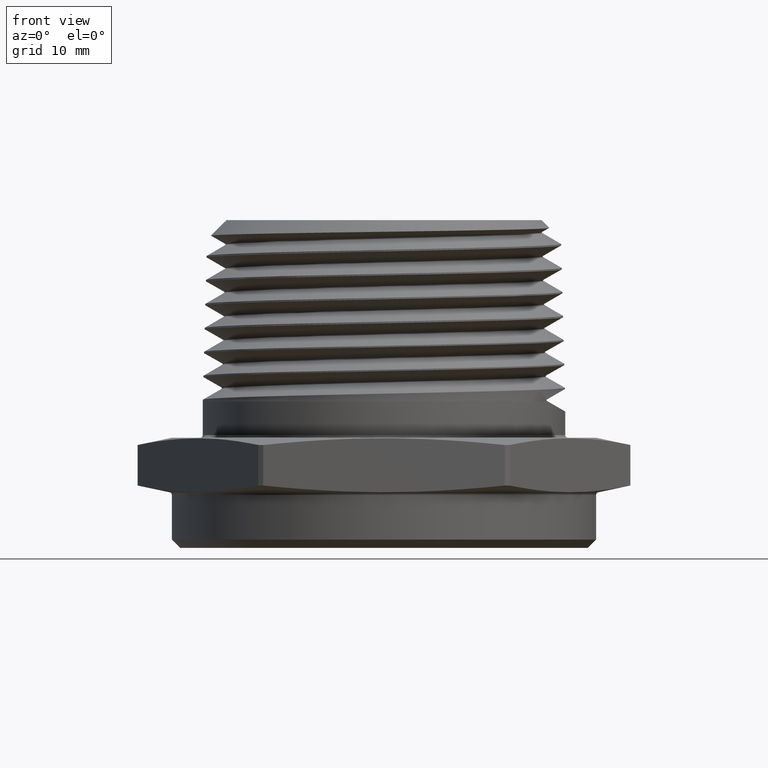
[diagram: clean part render]
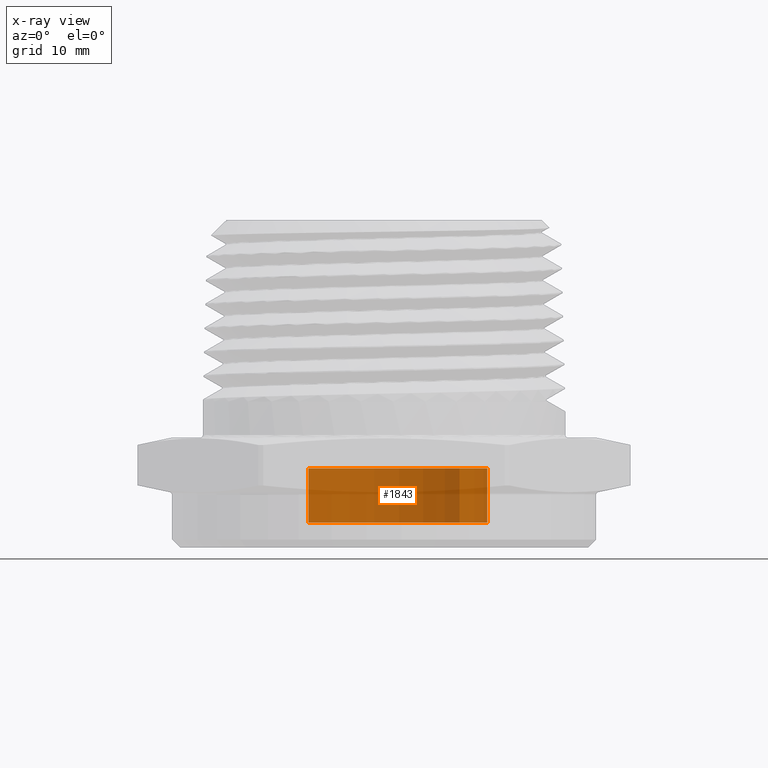
[diagram: x-ray — body ghosted, one internal face saturated and labeled with its STEP entity id]
A machine part, front view, then the same camera in x-ray: the body is ghosted and one INTERNAL B-rep face — a face not visible from any outside direction — is saturated and labeled: STEP entity #1843.
In plain terms, the highlighted cylindrical surface (partial cylindrical patch) has radius 9.5249 mm, axis along (0, 0, -1).
Its self-contained STEP definition (entity closure, byte-faithful):
#59 = AXIS2_PLACEMENT_3D ( 'NONE', #2581, #2582, #2583 ) ;
#1843 = ADVANCED_FACE ( 'NONE', ( #5679 ), #5683, .T. ) ;
#2581 = CARTESIAN_POINT ( 'NONE',  ( 0.09329948630094443700, -0.2820031074539262600, 0.2162204724409449700 ) ) ;
#2582 = DIRECTION ( 'NONE',  ( -0.0000000000000000000, -0.0000000000000000000, -1.000000000000000000 ) ) ;
#2583 = DIRECTION ( 'NONE',  ( 1.000000000000000000, -9.106293384606316300E-017, 0.0000000000000000000 ) ) ;
#2599 = CARTESIAN_POINT ( 'NONE',  ( 0.4682939926115881100, -0.2820031074539262600, 0.2162204724409449700 ) ) ;
#2610 = CARTESIAN_POINT ( 'NONE',  ( -0.2816950200096992000, -0.2820031074539262600, 0.2162204724409449700 ) ) ;
#2612 = CARTESIAN_POINT ( 'NONE',  ( -0.2816950200096992000, -0.2820031074539262600, 0.02000000000000005900 ) ) ;
#2615 = CARTESIAN_POINT ( 'NONE',  ( 0.4682939926115881100, -0.2820031074539262600, 0.02000000000000005900 ) ) ;
#2638 = DIRECTION ( 'NONE',  ( 0.0000000000000000000, 0.0000000000000000000, -1.000000000000000000 ) ) ;
#2639 = CARTESIAN_POINT ( 'NONE',  ( -0.2816950200096995400, -0.2820031074539262600, 0.2362204724409449100 ) ) ;
#2645 = CARTESIAN_POINT ( 'NONE',  ( 0.4682939926115884400, -0.2820031074539262600, 0.2362204724409449100 ) ) ;
#2646 = DIRECTION ( 'NONE',  ( 0.0000000000000000000, 0.0000000000000000000, -1.000000000000000000 ) ) ;
#4631 = CARTESIAN_POINT ( 'NONE',  ( 0.09329948630094443700, -0.2820031074539262600, 0.02000000000000005900 ) ) ;
#4632 = DIRECTION ( 'NONE',  ( 0.0000000000000000000, 0.0000000000000000000, 1.000000000000000000 ) ) ;
#4633 = DIRECTION ( 'NONE',  ( 1.000000000000000000, -9.106293384606316300E-017, 0.0000000000000000000 ) ) ;
#5338 = EDGE_CURVE ( 'NONE', #5599, #5595, #5530, .T. ) ;
#5396 = EDGE_CURVE ( 'NONE', #5591, #5594, #5554, .T. ) ;
#5530 = CIRCLE ( 'NONE', #6573, 0.3749945063106440200 ) ;
#5554 = CIRCLE ( 'NONE', #59, 0.3749945063106440200 ) ;
#5591 = VERTEX_POINT ( 'NONE', #2610 ) ;
#5594 = VERTEX_POINT ( 'NONE', #2599 ) ;
#5595 = VERTEX_POINT ( 'NONE', #2612 ) ;
#5599 = VERTEX_POINT ( 'NONE', #2615 ) ;
#5679 = FACE_OUTER_BOUND ( 'NONE', #6060, .T. ) ;
#5683 = CYLINDRICAL_SURFACE ( 'NONE', #6524, 0.3749945063106440200 ) ;
#5718 = LINE ( 'NONE', #2639, #5723 ) ;
#5721 = VECTOR ( 'NONE', #2646, 39.37007874015748100 ) ;
#5723 = VECTOR ( 'NONE', #2638, 39.37007874015748100 ) ;
#5724 = LINE ( 'NONE', #2645, #5721 ) ;
#5804 = EDGE_CURVE ( 'NONE', #5591, #5595, #5718, .T. ) ;
#5805 = EDGE_CURVE ( 'NONE', #5594, #5599, #5724, .T. ) ;
#5827 = ORIENTED_EDGE ( 'NONE', *, *, #5804, .F. ) ;
#6060 = EDGE_LOOP ( 'NONE', ( #6095, #6096, #6097, #5827 ) ) ;
#6095 = ORIENTED_EDGE ( 'NONE', *, *, #5396, .T. ) ;
#6096 = ORIENTED_EDGE ( 'NONE', *, *, #5805, .T. ) ;
#6097 = ORIENTED_EDGE ( 'NONE', *, *, #5338, .T. ) ;
#6524 = AXIS2_PLACEMENT_3D ( 'NONE', #6710, #6705, #6707 ) ;
#6573 = AXIS2_PLACEMENT_3D ( 'NONE', #4631, #4632, #4633 ) ;
#6705 = DIRECTION ( 'NONE',  ( 0.0000000000000000000, 0.0000000000000000000, -1.000000000000000000 ) ) ;
#6707 = DIRECTION ( 'NONE',  ( -1.000000000000000000, 9.106293384606316300E-017, 0.0000000000000000000 ) ) ;
#6710 = CARTESIAN_POINT ( 'NONE',  ( 0.09329948630094443700, -0.2820031074539262600, 0.2362204724409449100 ) ) ;